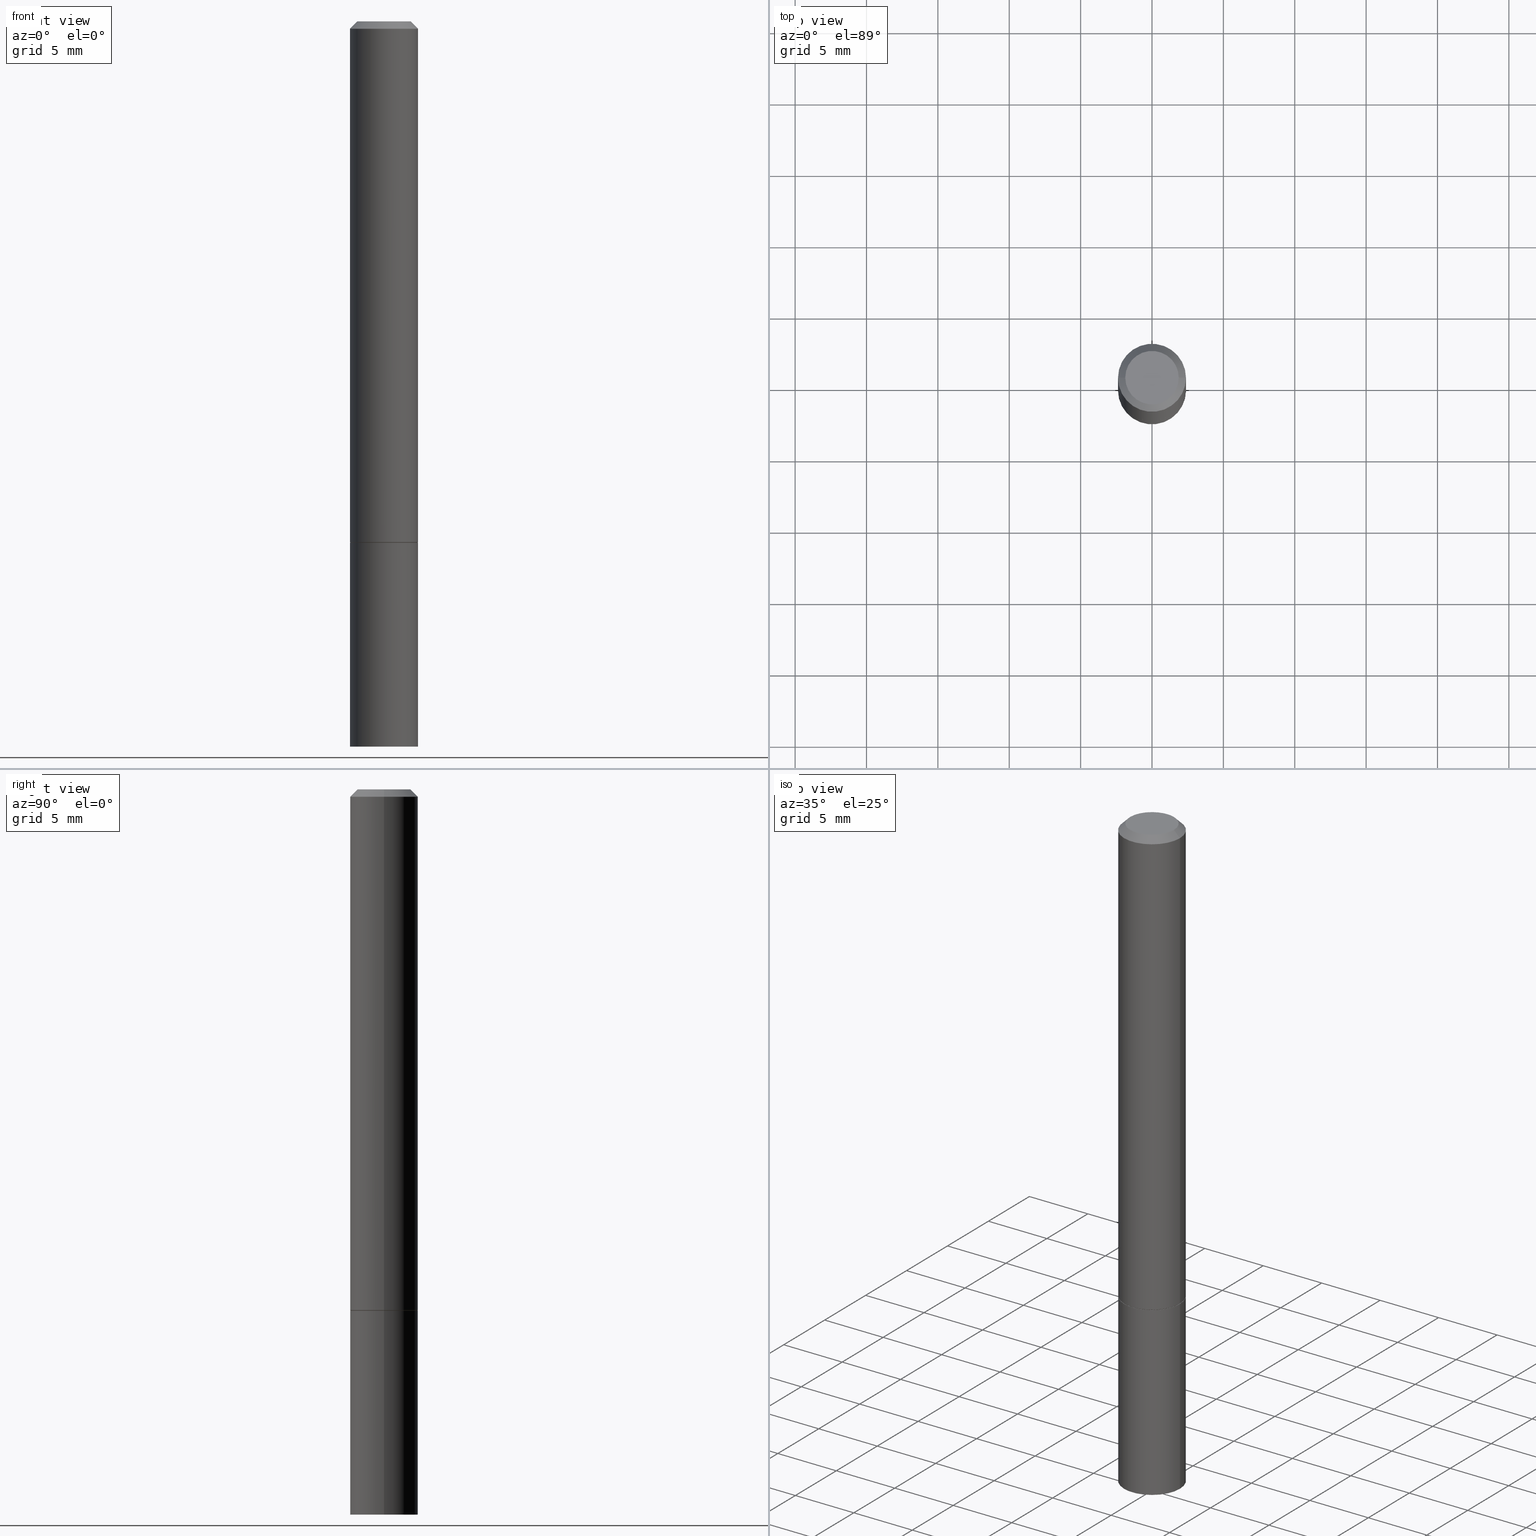
[diagram: canonical four-view strip — front | top / right | iso, engineering-drawing reading convention]
A machine part, canonical four-view strip (front | top / right | iso — engineering-drawing reading convention). The complete STEP part file that produces these views, byte-faithful:
ISO-10303-21;
HEADER;
FILE_DESCRIPTION (( 'STEP AP203' ),
    '1' );
FILE_NAME ('34702.STEP',
    '2024-02-27T16:44:14',
    ( '' ),
    ( '' ),
    'SwSTEP 2.0',
    'SolidWorks 2023',
    '' );
FILE_SCHEMA (( 'CONFIG_CONTROL_DESIGN' ));
ENDSEC;

DATA;
#1 = DIRECTION ( 'NONE',  ( 1.000000000000000000, -6.982962677686265922E-15, 4.876176775795935793E-29 ) ) ;
#2 = PERSON_AND_ORGANIZATION_ROLE ( 'design_owner' ) ;
#3 = LOCAL_TIME ( 11, 44, 14.00000000000000000, #294 ) ;
#4 = DIRECTION ( 'NONE',  ( -2.445468806185136597E-29, 3.491481338843145583E-15, 1.000000000000000000 ) ) ;
#5 = ADVANCED_FACE ( 'NONE', ( #284 ), #116, .T. ) ;
#6 = DIRECTION ( 'NONE',  ( 2.445468806185136597E-29, -3.491481338843145583E-15, -1.000000000000000000 ) ) ;
#7 = DATE_TIME_ROLE ( 'creation_date' ) ;
#8 = DIRECTION ( 'NONE',  ( -2.445468806185136597E-29, 3.491481338843145583E-15, 1.000000000000000000 ) ) ;
#9 = CARTESIAN_POINT ( 'NONE',  ( -0.09375000000000001388, -5.334849736361562435E-15, -2.000000000000000000 ) ) ;
#10 = ORIENTED_EDGE ( 'NONE', *, *, #359, .F. ) ;
#11 = COORDINATED_UNIVERSAL_TIME_OFFSET ( 5, 0, .BEHIND. ) ;
#12 = AXIS2_PLACEMENT_3D ( 'NONE', #174, #4, #127 ) ;
#13 = CLOSED_SHELL ( 'NONE', ( #53, #192, #166, #270, #244, #283, #263, #150 ) ) ;
#14 = APPROVAL_ROLE ( '' ) ;
#15 = ORIENTED_EDGE ( 'NONE', *, *, #112, .F. ) ;
#16 = EDGE_CURVE ( 'NONE', #317, #46, #160, .T. ) ;
#17 = ORIENTED_EDGE ( 'NONE', *, *, #198, .T. ) ;
#18 = DIRECTION ( 'NONE',  ( 0.7071067811865232589, -2.468850131082003836E-15, 0.7071067811865715536 ) ) ;
#19 = EDGE_LOOP ( 'NONE', ( #204, #189, #121, #50 ) ) ;
#20 = CIRCLE ( 'NONE', #233, 0.07374999999999988509 ) ;
#21 = ORIENTED_EDGE ( 'NONE', *, *, #91, .F. ) ;
#22 = DIRECTION ( 'NONE',  ( 1.000000000000000000, -6.982962677686261977E-15, 0.000000000000000000 ) ) ;
#23 = CIRCLE ( 'NONE', #88, 0.09374999999999983347 ) ;
#24 = DIRECTION ( 'NONE',  ( 2.438088387897960049E-29, -3.491481338843145188E-15, -1.000000000000000000 ) ) ;
#25 = FACE_OUTER_BOUND ( 'NONE', #362, .T. ) ;
#26 =( NAMED_UNIT ( * ) PLANE_ANGLE_UNIT ( ) SI_UNIT ( $, .RADIAN. ) );
#27 = DIRECTION ( 'NONE',  ( -0.7071067811865232589, 7.493145998870265808E-15, 0.7071067811865715536 ) ) ;
#28 = CARTESIAN_POINT ( 'NONE',  ( 0.09374999999999991673, -6.546527510330869125E-16, 4.571415727308685602E-30 ) ) ;
#29 = ORIENTED_EDGE ( 'NONE', *, *, #49, .T. ) ;
#30 =( GEOMETRIC_REPRESENTATION_CONTEXT ( 3 ) GLOBAL_UNCERTAINTY_ASSIGNED_CONTEXT ( ( #81 ) ) GLOBAL_UNIT_ASSIGNED_CONTEXT ( ( #191, #26, #274 ) ) REPRESENTATION_CONTEXT ( 'NONE', 'WORKASPACE' ) );
#31 = CARTESIAN_POINT ( 'NONE',  ( 4.890937612370274910E-31, -6.982962677686295307E-17, -0.02000000000000000736 ) ) ;
#32 = DIRECTION ( 'NONE',  ( -1.000000000000000000, 6.982962677686265922E-15, -4.876176775795935793E-29 ) ) ;
#33 = CARTESIAN_POINT ( 'NONE',  ( 4.890937612370273194E-29, -6.982962677686291165E-15, -2.000000000000000000 ) ) ;
#34 = PERSON_AND_ORGANIZATION ( #329, #44 ) ;
#35 = CARTESIAN_POINT ( 'NONE',  ( 0.09374999999999983347, -7.130013140679429031E-16, -0.02000000000000000736 ) ) ;
#36 = VERTEX_POINT ( 'NONE', #231 ) ;
#37 = AXIS2_PLACEMENT_3D ( 'NONE', #131, #60, #346 ) ;
#38 =( LENGTH_UNIT ( ) NAMED_UNIT ( * ) SI_UNIT ( $, .METRE. ) );
#39 = SHAPE_DEFINITION_REPRESENTATION ( #72, #126 ) ;
#40 = MANIFOLD_SOLID_BREP ( 'Body-Move/Copy2[2]', #13 ) ;
#41 = DIRECTION ( 'NONE',  ( 1.000000000000000000, 0.000000000000000000, 0.000000000000000000 ) ) ;
#42 = MANIFOLD_SOLID_BREP ( 'Body-Move/Copy2[1]', #268 ) ;
#43 = ADVANCED_FACE ( 'NONE', ( #223 ), #305, .T. ) ;
#44 = ORGANIZATION ( 'UNSPECIFIED', 'UNSPECIFIED', '' ) ;
#45 = ORIENTED_EDGE ( 'NONE', *, *, #361, .F. ) ;
#46 = VERTEX_POINT ( 'NONE', #251 ) ;
#47 = AXIS2_PLACEMENT_3D ( 'NONE', #176, #154, #261 ) ;
#48 = CC_DESIGN_SECURITY_CLASSIFICATION ( #296, ( #55 ) ) ;
#49 = EDGE_CURVE ( 'NONE', #173, #137, #169, .T. ) ;
#50 = ORIENTED_EDGE ( 'NONE', *, *, #320, .F. ) ;
#51 = DIRECTION ( 'NONE',  ( -2.438088387897960049E-29, 3.491481338843145188E-15, 1.000000000000000000 ) ) ;
#52 = DIRECTION ( 'NONE',  ( -2.445468806185136597E-29, 3.491481338843145583E-15, 1.000000000000000000 ) ) ;
#53 = ADVANCED_FACE ( 'NONE', ( #25 ), #354, .T. ) ;
#54 = APPLICATION_PROTOCOL_DEFINITION ( 'international standard', 'config_control_design', 1994, #98 ) ;
#55 = PRODUCT_DEFINITION_FORMATION_WITH_SPECIFIED_SOURCE ( 'ANY', '', #135, .NOT_KNOWN. ) ;
#56 = EDGE_LOOP ( 'NONE', ( #15, #230, #351, #193 ) ) ;
#57 = VECTOR ( 'NONE', #90, 39.37007874015748143 ) ;
#58 = DIRECTION ( 'NONE',  ( -2.445468806185136597E-29, 3.491481338843145583E-15, 1.000000000000000000 ) ) ;
#59 = LINE ( 'NONE', #170, #325 ) ;
#60 = DIRECTION ( 'NONE',  ( -2.445468806185136597E-29, 3.491481338843145583E-15, 1.000000000000000000 ) ) ;
#61 = CC_DESIGN_PERSON_AND_ORGANIZATION_ASSIGNMENT ( #292, #311, ( #296 ) ) ;
#62 = CARTESIAN_POINT ( 'NONE',  ( 0.000000000000000000, 0.000000000000000000, 0.000000000000000000 ) ) ;
#63 = CONICAL_SURFACE ( 'NONE', #199, 0.09374999999999983347, 0.7853981633974469467 ) ;
#64 = CARTESIAN_POINT ( 'NONE',  ( 5.149934974793613022E-16, 0.07374999999999988509, -2.553624924946313252E-16 ) ) ;
#65 = APPROVAL_DATE_TIME ( #157, #197 ) ;
#66 = DIRECTION ( 'NONE',  ( 1.000000000000000000, -6.982962677686261189E-15, 0.000000000000000000 ) ) ;
#67 = DIRECTION ( 'NONE',  ( 1.000000000000000000, -6.982962677686261977E-15, 0.000000000000000000 ) ) ;
#68 = DIRECTION ( 'NONE',  ( -2.445468806185136597E-29, 3.491481338843145583E-15, 1.000000000000000000 ) ) ;
#69 = AXIS2_PLACEMENT_3D ( 'NONE', #203, #226, #330 ) ;
#70 = ORIENTED_EDGE ( 'NONE', *, *, #220, .F. ) ;
#71 = CALENDAR_DATE ( 2024, 27, 2 ) ;
#72 = PRODUCT_DEFINITION_SHAPE ( 'NONE', 'NONE',  #205 ) ;
#73 = CARTESIAN_POINT ( 'NONE',  ( -0.09374999999999983347, 5.848231242562234171E-16, -0.02000000000000000736 ) ) ;
#74 = CALENDAR_DATE ( 2024, 27, 2 ) ;
#75 = ORIENTED_EDGE ( 'NONE', *, *, #112, .T. ) ;
#76 = ORIENTED_EDGE ( 'NONE', *, *, #324, .F. ) ;
#77 = CIRCLE ( 'NONE', #12, 0.09274999999999999911 ) ;
#78 = DIRECTION ( 'NONE',  ( -2.445468806185136877E-29, 3.491481338843145188E-15, 1.000000000000000000 ) ) ;
#79 = VERTEX_POINT ( 'NONE', #327 ) ;
#80 = FACE_OUTER_BOUND ( 'NONE', #246, .T. ) ;
#81 = UNCERTAINTY_MEASURE_WITH_UNIT (LENGTH_MEASURE( 1.000000000000000082E-05 ), #191, 'distance_accuracy_value', 'NONE');
#82 = AXIS2_PLACEMENT_3D ( 'NONE', #249, #51, #229 ) ;
#83 = CC_DESIGN_DATE_AND_TIME_ASSIGNMENT ( #151, #7, ( #205 ) ) ;
#84 = EDGE_CURVE ( 'NONE', #156, #338, #85, .T. ) ;
#85 = LINE ( 'NONE', #93, #153 ) ;
#86 = FACE_OUTER_BOUND ( 'NONE', #19, .T. ) ;
#87 = ORIENTED_EDGE ( 'NONE', *, *, #198, .F. ) ;
#88 = AXIS2_PLACEMENT_3D ( 'NONE', #31, #149, #122 ) ;
#89 = DIRECTION ( 'NONE',  ( -2.445468806185136877E-29, 3.491481338843145188E-15, 1.000000000000000000 ) ) ;
#90 = DIRECTION ( 'NONE',  ( -2.445468806185136877E-29, 3.491481338843145188E-15, 1.000000000000000000 ) ) ;
#91 = EDGE_CURVE ( 'NONE', #338, #308, #291, .T. ) ;
#92 = CARTESIAN_POINT ( 'NONE',  ( -0.09274999999999999911, -4.354677582821307024E-15, -1.437500000000000000 ) ) ;
#93 = CARTESIAN_POINT ( 'NONE',  ( -0.09375000000000001388, 6.661338147750940229E-16, -4.611501647113973995E-30 ) ) ;
#94 = DIRECTION ( 'NONE',  ( 1.000000000000000000, -6.982962677686261189E-15, 0.000000000000000000 ) ) ;
#95 = PERSON_AND_ORGANIZATION ( #329, #44 ) ;
#96 = CC_DESIGN_APPROVAL ( #336, ( #296 ) ) ;
#97 = AXIS2_PLACEMENT_3D ( 'NONE', #167, #58, #360 ) ;
#98 = APPLICATION_CONTEXT ( 'configuration controlled 3d designs of mechanical parts and assemblies' ) ;
#99 = CALENDAR_DATE ( 2024, 27, 2 ) ;
#100 = DIMENSIONAL_EXPONENTS ( 1.000000000000000000, 0.000000000000000000, 0.000000000000000000, 0.000000000000000000, 0.000000000000000000, 0.000000000000000000, 0.000000000000000000 ) ;
#101 = FACE_OUTER_BOUND ( 'NONE', #364, .T. ) ;
#102 = PERSON_AND_ORGANIZATION ( #329, #44 ) ;
#103 = CIRCLE ( 'NONE', #356, 0.09375000000000001388 ) ;
#104 = LOCAL_TIME ( 11, 44, 14.00000000000000000, #341 ) ;
#105 = FACE_OUTER_BOUND ( 'NONE', #316, .T. ) ;
#106 = MECHANICAL_CONTEXT ( 'NONE', #98, 'mechanical' ) ;
#107 = EDGE_CURVE ( 'NONE', #79, #308, #59, .T. ) ;
#108 = ORIENTED_EDGE ( 'NONE', *, *, #218, .F. ) ;
#109 = DIRECTION ( 'NONE',  ( -2.445468806185136597E-29, 3.491481338843145583E-15, 1.000000000000000000 ) ) ;
#110 = DIRECTION ( 'NONE',  ( -0.7071067811865465735, 2.468850131082246805E-15, -0.7071067811865484609 ) ) ;
#111 = EDGE_LOOP ( 'NONE', ( #280, #302, #211, #21 ) ) ;
#112 = EDGE_CURVE ( 'NONE', #145, #187, #363, .T. ) ;
#113 = DIRECTION ( 'NONE',  ( 1.000000000000000000, -6.982962677686266711E-15, 4.876176775795935793E-29 ) ) ;
#114 = AXIS2_PLACEMENT_3D ( 'NONE', #148, #52, #333 ) ;
#115 = DIRECTION ( 'NONE',  ( 1.000000000000000000, -6.982962677686261189E-15, 0.000000000000000000 ) ) ;
#116 = CYLINDRICAL_SURFACE ( 'NONE', #114, 0.09375000000000001388 ) ;
#117 = DIRECTION ( 'NONE',  ( -2.445468806185136597E-29, 3.491481338843145583E-15, 1.000000000000000000 ) ) ;
#118 = VECTOR ( 'NONE', #78, 39.37007874015748143 ) ;
#119 = CARTESIAN_POINT ( 'NONE',  ( -0.09274999999999999911, -4.359976037169529426E-15, -1.437500000000000000 ) ) ;
#120 = LOCAL_TIME ( 11, 44, 14.00000000000000000, #347 ) ;
#121 = ORIENTED_EDGE ( 'NONE', *, *, #218, .T. ) ;
#122 = DIRECTION ( 'NONE',  ( 1.000000000000000000, -6.982962677686267499E-15, 0.000000000000000000 ) ) ;
#123 = PLANE ( 'NONE',  #306 ) ;
#124 = CONICAL_SURFACE ( 'NONE', #179, 0.09374999999999983347, 0.7853981633974469467 ) ;
#125 = DIRECTION ( 'NONE',  ( 0.000000000000000000, 0.000000000000000000, 1.000000000000000000 ) ) ;
#126 = ADVANCED_BREP_SHAPE_REPRESENTATION ( '34702', ( #42, #40, #240 ), #30 ) ;
#127 = DIRECTION ( 'NONE',  ( 1.000000000000000000, -6.982962677686261977E-15, 0.000000000000000000 ) ) ;
#128 = DIRECTION ( 'NONE',  ( -1.000000000000000000, 6.982962677686267499E-15, 0.000000000000000000 ) ) ;
#129 = APPROVAL_STATUS ( 'not_yet_approved' ) ;
#130 = APPLICATION_CONTEXT ( 'configuration controlled 3d designs of mechanical parts and assemblies' ) ;
#131 = CARTESIAN_POINT ( 'NONE',  ( 3.512915940084948255E-29, -5.015512943248178546E-15, -1.436499999999999888 ) ) ;
#132 = APPROVAL_ROLE ( '' ) ;
#133 = PERSON_AND_ORGANIZATION_ROLE ( 'creator' ) ;
#134 = VECTOR ( 'NONE', #110, 39.37007874015748143 ) ;
#135 = PRODUCT ( '34702', '34702', '', ( #106 ) ) ;
#136 = APPROVAL_PERSON_ORGANIZATION ( #34, #336, #132 ) ;
#137 = VERTEX_POINT ( 'NONE', #247 ) ;
#138 = VECTOR ( 'NONE', #340, 39.37007874015748143 ) ;
#139 = ORIENTED_EDGE ( 'NONE', *, *, #107, .F. ) ;
#140 = DIRECTION ( 'NONE',  ( -2.445468806185136597E-29, 3.491481338843145583E-15, 1.000000000000000000 ) ) ;
#141 = AXIS2_PLACEMENT_3D ( 'NONE', #162, #300, #113 ) ;
#142 = DIRECTION ( 'NONE',  ( -1.000000000000000000, 6.982962677686265922E-15, -4.876176775795935793E-29 ) ) ;
#143 = DIRECTION ( 'NONE',  ( -2.445468806185136597E-29, 3.491481338843145583E-15, 1.000000000000000000 ) ) ;
#144 = EDGE_CURVE ( 'NONE', #156, #79, #103, .T. ) ;
#145 = VERTEX_POINT ( 'NONE', #343 ) ;
#146 = CC_DESIGN_PERSON_AND_ORGANIZATION_ASSIGNMENT ( #215, #133, ( #55 ) ) ;
#147 = CARTESIAN_POINT ( 'NONE',  ( 3.515361408891133858E-29, -5.019004424587021553E-15, -1.437500000000000000 ) ) ;
#148 = CARTESIAN_POINT ( 'NONE',  ( 0.000000000000000000, 0.000000000000000000, 0.000000000000000000 ) ) ;
#149 = DIRECTION ( 'NONE',  ( -2.445468806185136597E-29, 3.491481338843145583E-15, 1.000000000000000000 ) ) ;
#150 = ADVANCED_FACE ( 'NONE', ( #155 ), #123, .F. ) ;
#151 = DATE_AND_TIME ( #74, #3 ) ;
#152 = CARTESIAN_POINT ( 'NONE',  ( -1.043851414335219820E-46, 1.490343170380447200E-32, 4.268512490100411279E-18 ) ) ;
#153 = VECTOR ( 'NONE', #194, 39.37007874015748143 ) ;
#154 = DIRECTION ( 'NONE',  ( -2.445468806185136597E-29, 3.491481338843145583E-15, 1.000000000000000000 ) ) ;
#155 = FACE_OUTER_BOUND ( 'NONE', #196, .T. ) ;
#156 = VERTEX_POINT ( 'NONE', #9 ) ;
#157 = DATE_AND_TIME ( #216, #248 ) ;
#158 = ADVANCED_FACE ( 'NONE', ( #105 ), #258, .F. ) ;
#159 = CIRCLE ( 'NONE', #37, 0.09375000000000001388 ) ;
#160 = CIRCLE ( 'NONE', #97, 0.09274999999999999911 ) ;
#161 = VERTEX_POINT ( 'NONE', #235 ) ;
#162 = CARTESIAN_POINT ( 'NONE',  ( 0.000000000000000000, 0.000000000000000000, 0.000000000000000000 ) ) ;
#163 = CC_DESIGN_APPROVAL ( #323, ( #55 ) ) ;
#164 = CARTESIAN_POINT ( 'NONE',  ( 4.890937612370274910E-31, -6.982962677686295307E-17, -0.02000000000000000736 ) ) ;
#165 = EDGE_LOOP ( 'NONE', ( #269, #304, #314, #272 ) ) ;
#166 = ADVANCED_FACE ( 'NONE', ( #287 ), #124, .T. ) ;
#167 = CARTESIAN_POINT ( 'NONE',  ( 3.515361408891133858E-29, -5.019004424587021553E-15, -1.437500000000000000 ) ) ;
#168 = CC_DESIGN_APPROVAL ( #197, ( #205 ) ) ;
#169 = LINE ( 'NONE', #28, #57 ) ;
#170 = CARTESIAN_POINT ( 'NONE',  ( 0.09375000000000001388, -6.546527510330875041E-16, 4.571415727308690506E-30 ) ) ;
#171 = CIRCLE ( 'NONE', #266, 0.09375000000000001388 ) ;
#172 = DIRECTION ( 'NONE',  ( 2.438088387897960049E-29, -3.491481338843145188E-15, -1.000000000000000000 ) ) ;
#173 = VERTEX_POINT ( 'NONE', #366 ) ;
#174 = CARTESIAN_POINT ( 'NONE',  ( 3.515361408891133858E-29, -5.019004424587021553E-15, -1.437500000000000000 ) ) ;
#175 = PERSON_AND_ORGANIZATION ( #329, #44 ) ;
#176 = CARTESIAN_POINT ( 'NONE',  ( 3.512915940084948255E-29, -5.015512943248178546E-15, -1.436499999999999888 ) ) ;
#177 = AXIS2_PLACEMENT_3D ( 'NONE', #62, #68, #214 ) ;
#178 = LINE ( 'NONE', #353, #118 ) ;
#179 = AXIS2_PLACEMENT_3D ( 'NONE', #256, #6, #128 ) ;
#180 = APPLICATION_PROTOCOL_DEFINITION ( 'international standard', 'config_control_design', 1994, #130 ) ;
#181 = ORIENTED_EDGE ( 'NONE', *, *, #307, .T. ) ;
#182 = CC_DESIGN_PERSON_AND_ORGANIZATION_ASSIGNMENT ( #102, #184, ( #55 ) ) ;
#183 = CARTESIAN_POINT ( 'NONE',  ( 6.546527510331227070E-16, 0.09374999999999499012, -1.437500000000000222 ) ) ;
#184 = PERSON_AND_ORGANIZATION_ROLE ( 'design_supplier' ) ;
#185 = EDGE_LOOP ( 'NONE', ( #334, #250 ) ) ;
#186 = ORIENTED_EDGE ( 'NONE', *, *, #359, .T. ) ;
#187 = VERTEX_POINT ( 'NONE', #237 ) ;
#188 = LINE ( 'NONE', #73, #134 ) ;
#189 = ORIENTED_EDGE ( 'NONE', *, *, #16, .T. ) ;
#190 = CYLINDRICAL_SURFACE ( 'NONE', #141, 0.09374999999999991673 ) ;
#191 =( CONVERSION_BASED_UNIT ( 'INCH', #219 ) LENGTH_UNIT ( ) NAMED_UNIT ( #100 ) );
#192 = ADVANCED_FACE ( 'NONE', ( #101 ), #210, .T. ) ;
#193 = ORIENTED_EDGE ( 'NONE', *, *, #206, .F. ) ;
#194 = DIRECTION ( 'NONE',  ( -2.445468806185136877E-29, 3.491481338843145188E-15, 1.000000000000000000 ) ) ;
#195 = CARTESIAN_POINT ( 'NONE',  ( 3.515361408891133858E-29, -5.019004424587021553E-15, -1.437500000000000000 ) ) ;
#196 = EDGE_LOOP ( 'NONE', ( #278, #75 ) ) ;
#197 = APPROVAL ( #129, 'UNSPECIFIED' ) ;
#198 = EDGE_CURVE ( 'NONE', #161, #36, #178, .T. ) ;
#199 = AXIS2_PLACEMENT_3D ( 'NONE', #164, #358, #328 ) ;
#200 = LOCAL_TIME ( 11, 44, 14.00000000000000000, #238 ) ;
#201 = AXIS2_PLACEMENT_3D ( 'NONE', #147, #117, #22 ) ;
#202 = CARTESIAN_POINT ( 'NONE',  ( 4.890937612370273194E-29, -6.982962677686291165E-15, -2.000000000000000000 ) ) ;
#203 = CARTESIAN_POINT ( 'NONE',  ( 3.515361408891133858E-29, -5.019004424587021553E-15, -1.437500000000000000 ) ) ;
#204 = ORIENTED_EDGE ( 'NONE', *, *, #254, .F. ) ;
#205 = PRODUCT_DEFINITION ( 'UNKNOWN', '', #55, #303 ) ;
#206 = EDGE_CURVE ( 'NONE', #187, #36, #188, .T. ) ;
#207 = SECURITY_CLASSIFICATION_LEVEL ( 'unclassified' ) ;
#208 = CARTESIAN_POINT ( 'NONE',  ( 3.515361408891133858E-29, -5.019004424587021553E-15, -1.437500000000000000 ) ) ;
#209 = APPROVAL_DATE_TIME ( #319, #336 ) ;
#210 = CYLINDRICAL_SURFACE ( 'NONE', #177, 0.09374999999999991673 ) ;
#211 = ORIENTED_EDGE ( 'NONE', *, *, #107, .T. ) ;
#212 = CARTESIAN_POINT ( 'NONE',  ( 0.000000000000000000, 0.000000000000000000, 0.000000000000000000 ) ) ;
#213 = AXIS2_PLACEMENT_3D ( 'NONE', #253, #140, #281 ) ;
#214 = DIRECTION ( 'NONE',  ( 1.000000000000000000, -6.982962677686266711E-15, 4.876176775795935793E-29 ) ) ;
#215 = PERSON_AND_ORGANIZATION ( #329, #44 ) ;
#216 = CALENDAR_DATE ( 2024, 27, 2 ) ;
#217 = DIRECTION ( 'NONE',  ( 1.000000000000000000, -6.982962677686267499E-15, 0.000000000000000000 ) ) ;
#218 = EDGE_CURVE ( 'NONE', #46, #173, #298, .T. ) ;
#219 = LENGTH_MEASURE_WITH_UNIT ( LENGTH_MEASURE( 0.02539999999999999897 ), #38 );
#220 = EDGE_CURVE ( 'NONE', #36, #137, #228, .T. ) ;
#221 = ORIENTED_EDGE ( 'NONE', *, *, #16, .F. ) ;
#222 = AXIS2_PLACEMENT_3D ( 'NONE', #183, #172, #32 ) ;
#223 = FACE_OUTER_BOUND ( 'NONE', #185, .T. ) ;
#224 = CC_DESIGN_PERSON_AND_ORGANIZATION_ASSIGNMENT ( #175, #321, ( #205 ) ) ;
#225 = ORIENTED_EDGE ( 'NONE', *, *, #49, .F. ) ;
#226 = DIRECTION ( 'NONE',  ( -2.445468806185136597E-29, 3.491481338843145583E-15, 1.000000000000000000 ) ) ;
#227 = APPROVAL_ROLE ( '' ) ;
#228 = CIRCLE ( 'NONE', #331, 0.09374999999999983347 ) ;
#229 = DIRECTION ( 'NONE',  ( 1.000000000000000000, -6.982962677686265922E-15, 4.876176775795935793E-29 ) ) ;
#230 = ORIENTED_EDGE ( 'NONE', *, *, #348, .T. ) ;
#231 = CARTESIAN_POINT ( 'NONE',  ( -0.09374999999999983347, 5.848231242562234171E-16, -0.02000000000000000736 ) ) ;
#232 = CARTESIAN_POINT ( 'NONE',  ( -0.09375000000000001388, -5.334849736361562435E-15, -1.437500000000000000 ) ) ;
#233 = AXIS2_PLACEMENT_3D ( 'NONE', #152, #255, #365 ) ;
#234 = LINE ( 'NONE', #35, #138 ) ;
#235 = CARTESIAN_POINT ( 'NONE',  ( -0.09375000000000001388, -1.876537470237424631E-15, -1.436499999999999888 ) ) ;
#236 = DATE_TIME_ROLE ( 'classification_date' ) ;
#237 = CARTESIAN_POINT ( 'NONE',  ( -0.07374999999999988509, 5.499083108677923596E-16, 4.268512490096688071E-18 ) ) ;
#238 = COORDINATED_UNIVERSAL_TIME_OFFSET ( 5, 0, .BEHIND. ) ;
#239 = CARTESIAN_POINT ( 'NONE',  ( 0.09375000000000001388, -5.673657175620109057E-15, -1.437500000000000000 ) ) ;
#240 = AXIS2_PLACEMENT_3D ( 'NONE', #350, #125, #41 ) ;
#241 = ORIENTED_EDGE ( 'NONE', *, *, #361, .T. ) ;
#242 = ORIENTED_EDGE ( 'NONE', *, *, #345, .T. ) ;
#243 = CARTESIAN_POINT ( 'NONE',  ( 4.890937612370274910E-31, -6.982962677686295307E-17, -0.02000000000000000736 ) ) ;
#244 = ADVANCED_FACE ( 'NONE', ( #80 ), #190, .T. ) ;
#245 = APPROVAL_PERSON_ORGANIZATION ( #293, #323, #14 ) ;
#246 = EDGE_LOOP ( 'NONE', ( #87, #252, #29, #70 ) ) ;
#247 = CARTESIAN_POINT ( 'NONE',  ( 0.09374999999999983347, -7.130013140679429031E-16, -0.02000000000000000736 ) ) ;
#248 = LOCAL_TIME ( 11, 44, 14.00000000000000000, #11 ) ;
#249 = CARTESIAN_POINT ( 'NONE',  ( 3.515361408891133858E-29, -5.019004424587021553E-15, -1.437500000000000000 ) ) ;
#250 = ORIENTED_EDGE ( 'NONE', *, *, #144, .F. ) ;
#251 = CARTESIAN_POINT ( 'NONE',  ( 0.09274999999999999911, -5.666674212942423043E-15, -1.437500000000000000 ) ) ;
#252 = ORIENTED_EDGE ( 'NONE', *, *, #320, .T. ) ;
#253 = CARTESIAN_POINT ( 'NONE',  ( -1.043851414335219820E-46, 1.490343170380447200E-32, 4.268512490100411279E-18 ) ) ;
#254 = EDGE_CURVE ( 'NONE', #317, #161, #282, .T. ) ;
#255 = DIRECTION ( 'NONE',  ( -2.445468806185136597E-29, 3.491481338843145583E-15, 1.000000000000000000 ) ) ;
#256 = CARTESIAN_POINT ( 'NONE',  ( 4.890937612370274910E-31, -6.982962677686295307E-17, -0.02000000000000000736 ) ) ;
#257 = CYLINDRICAL_SURFACE ( 'NONE', #310, 0.09375000000000001388 ) ;
#258 = PLANE ( 'NONE',  #222 ) ;
#259 = APPROVAL_STATUS ( 'not_yet_approved' ) ;
#260 = CIRCLE ( 'NONE', #295, 0.09375000000000001388 ) ;
#261 = DIRECTION ( 'NONE',  ( 1.000000000000000000, -6.982962677686261189E-15, 0.000000000000000000 ) ) ;
#262 = CC_DESIGN_PERSON_AND_ORGANIZATION_ASSIGNMENT ( #95, #2, ( #135 ) ) ;
#263 = ADVANCED_FACE ( 'NONE', ( #275 ), #355, .F. ) ;
#264 = PERSON_AND_ORGANIZATION ( #329, #44 ) ;
#265 = CALENDAR_DATE ( 2024, 27, 2 ) ;
#266 = AXIS2_PLACEMENT_3D ( 'NONE', #33, #335, #94 ) ;
#267 = APPROVAL_STATUS ( 'not_yet_approved' ) ;
#268 = CLOSED_SHELL ( 'NONE', ( #5, #43, #158, #313 ) ) ;
#269 = ORIENTED_EDGE ( 'NONE', *, *, #348, .F. ) ;
#270 = ADVANCED_FACE ( 'NONE', ( #279 ), #63, .T. ) ;
#271 = CARTESIAN_POINT ( 'NONE',  ( 0.09274999999999999911, -5.666674212942423043E-15, -1.437500000000000000 ) ) ;
#272 = ORIENTED_EDGE ( 'NONE', *, *, #220, .T. ) ;
#273 = EDGE_LOOP ( 'NONE', ( #242, #309, #10, #139 ) ) ;
#274 =( NAMED_UNIT ( * ) SI_UNIT ( $, .STERADIAN. ) SOLID_ANGLE_UNIT ( ) );
#275 = FACE_OUTER_BOUND ( 'NONE', #299, .T. ) ;
#276 = CARTESIAN_POINT ( 'NONE',  ( 6.546527510331364135E-16, 0.09374999999999301947, -2.000000000000000444 ) ) ;
#277 = CC_DESIGN_DATE_AND_TIME_ASSIGNMENT ( #288, #236, ( #296 ) ) ;
#278 = ORIENTED_EDGE ( 'NONE', *, *, #337, .T. ) ;
#279 = FACE_OUTER_BOUND ( 'NONE', #165, .T. ) ;
#280 = ORIENTED_EDGE ( 'NONE', *, *, #84, .F. ) ;
#281 = DIRECTION ( 'NONE',  ( 1.000000000000000000, -6.982962677686265922E-15, 4.875869617646592813E-29 ) ) ;
#282 = LINE ( 'NONE', #119, #352 ) ;
#283 = ADVANCED_FACE ( 'NONE', ( #86 ), #339, .T. ) ;
#284 = FACE_OUTER_BOUND ( 'NONE', #273, .T. ) ;
#285 = AXIS2_PLACEMENT_3D ( 'NONE', #195, #143, #67 ) ;
#286 = FACE_OUTER_BOUND ( 'NONE', #111, .T. ) ;
#287 = FACE_OUTER_BOUND ( 'NONE', #56, .T. ) ;
#288 = DATE_AND_TIME ( #265, #200 ) ;
#289 = DIRECTION ( 'NONE',  ( 2.438088387897960049E-29, -3.491481338843145188E-15, -1.000000000000000000 ) ) ;
#290 = APPROVAL_PERSON_ORGANIZATION ( #264, #197, #227 ) ;
#291 = CIRCLE ( 'NONE', #69, 0.09375000000000001388 ) ;
#292 = PERSON_AND_ORGANIZATION ( #329, #44 ) ;
#293 = PERSON_AND_ORGANIZATION ( #329, #44 ) ;
#294 = COORDINATED_UNIVERSAL_TIME_OFFSET ( 5, 0, .BEHIND. ) ;
#295 = AXIS2_PLACEMENT_3D ( 'NONE', #208, #315, #66 ) ;
#296 = SECURITY_CLASSIFICATION ( '', '', #207 ) ;
#297 = AXIS2_PLACEMENT_3D ( 'NONE', #276, #24, #142 ) ;
#298 = LINE ( 'NONE', #271, #301 ) ;
#299 = EDGE_LOOP ( 'NONE', ( #45, #221 ) ) ;
#300 = DIRECTION ( 'NONE',  ( -2.445468806185136597E-29, 3.491481338843145583E-15, 1.000000000000000000 ) ) ;
#301 = VECTOR ( 'NONE', #18, 39.37007874015748854 ) ;
#302 = ORIENTED_EDGE ( 'NONE', *, *, #144, .T. ) ;
#303 = DESIGN_CONTEXT ( 'detailed design', #130, 'design' ) ;
#304 = ORIENTED_EDGE ( 'NONE', *, *, #337, .F. ) ;
#305 = PLANE ( 'NONE',  #297 ) ;
#306 = AXIS2_PLACEMENT_3D ( 'NONE', #64, #289, #349 ) ;
#307 = EDGE_CURVE ( 'NONE', #173, #161, #318, .T. ) ;
#308 = VERTEX_POINT ( 'NONE', #239 ) ;
#309 = ORIENTED_EDGE ( 'NONE', *, *, #84, .T. ) ;
#310 = AXIS2_PLACEMENT_3D ( 'NONE', #212, #8, #1 ) ;
#311 = PERSON_AND_ORGANIZATION_ROLE ( 'classification_officer' ) ;
#312 = PRODUCT_RELATED_PRODUCT_CATEGORY ( 'detail', '', ( #135 ) ) ;
#313 = ADVANCED_FACE ( 'NONE', ( #286 ), #257, .T. ) ;
#314 = ORIENTED_EDGE ( 'NONE', *, *, #206, .T. ) ;
#315 = DIRECTION ( 'NONE',  ( -2.445468806185136597E-29, 3.491481338843145583E-15, 1.000000000000000000 ) ) ;
#316 = EDGE_LOOP ( 'NONE', ( #186, #322 ) ) ;
#317 = VERTEX_POINT ( 'NONE', #92 ) ;
#318 = CIRCLE ( 'NONE', #47, 0.09375000000000001388 ) ;
#319 = DATE_AND_TIME ( #99, #104 ) ;
#320 = EDGE_CURVE ( 'NONE', #161, #173, #159, .T. ) ;
#321 = PERSON_AND_ORGANIZATION_ROLE ( 'creator' ) ;
#322 = ORIENTED_EDGE ( 'NONE', *, *, #91, .T. ) ;
#323 = APPROVAL ( #267, 'UNSPECIFIED' ) ;
#324 = EDGE_CURVE ( 'NONE', #137, #36, #23, .T. ) ;
#325 = VECTOR ( 'NONE', #89, 39.37007874015748143 ) ;
#326 = ORIENTED_EDGE ( 'NONE', *, *, #307, .F. ) ;
#327 = CARTESIAN_POINT ( 'NONE',  ( 0.09375000000000001388, -7.637615428719378669E-15, -2.000000000000000000 ) ) ;
#328 = DIRECTION ( 'NONE',  ( -1.000000000000000000, 6.982962677686267499E-15, 0.000000000000000000 ) ) ;
#329 = PERSON ( 'UNSPECIFIED', 'UNSPECIFIED', 'UNSPECIFIED', ('UNSPECIFIED'), ('UNSPECIFIED'), ('UNSPECIFIED') ) ;
#330 = DIRECTION ( 'NONE',  ( 1.000000000000000000, -6.982962677686261189E-15, 0.000000000000000000 ) ) ;
#331 = AXIS2_PLACEMENT_3D ( 'NONE', #243, #109, #217 ) ;
#332 = APPROVAL_DATE_TIME ( #344, #323 ) ;
#333 = DIRECTION ( 'NONE',  ( 1.000000000000000000, -6.982962677686265922E-15, 4.876176775795935793E-29 ) ) ;
#334 = ORIENTED_EDGE ( 'NONE', *, *, #345, .F. ) ;
#335 = DIRECTION ( 'NONE',  ( -2.445468806185136597E-29, 3.491481338843145583E-15, 1.000000000000000000 ) ) ;
#336 = APPROVAL ( #259, 'UNSPECIFIED' ) ;
#337 = EDGE_CURVE ( 'NONE', #187, #145, #20, .T. ) ;
#338 = VERTEX_POINT ( 'NONE', #232 ) ;
#339 = CONICAL_SURFACE ( 'NONE', #285, 0.09274999999999999911, 0.7853981633974141952 ) ;
#340 = DIRECTION ( 'NONE',  ( 0.7071067811865465735, -7.319954787623252890E-15, -0.7071067811865484609 ) ) ;
#341 = COORDINATED_UNIVERSAL_TIME_OFFSET ( 5, 0, .BEHIND. ) ;
#342 = ORIENTED_EDGE ( 'NONE', *, *, #254, .T. ) ;
#343 = CARTESIAN_POINT ( 'NONE',  ( 0.07374999999999988509, -6.094815207017963170E-16, 4.268512490104342487E-18 ) ) ;
#344 = DATE_AND_TIME ( #71, #120 ) ;
#345 = EDGE_CURVE ( 'NONE', #79, #156, #171, .T. ) ;
#346 = DIRECTION ( 'NONE',  ( 1.000000000000000000, -6.982962677686261189E-15, 0.000000000000000000 ) ) ;
#347 = COORDINATED_UNIVERSAL_TIME_OFFSET ( 5, 0, .BEHIND. ) ;
#348 = EDGE_CURVE ( 'NONE', #145, #137, #234, .T. ) ;
#349 = DIRECTION ( 'NONE',  ( -1.000000000000000000, 6.982962677686265922E-15, -4.876176775795935793E-29 ) ) ;
#350 = CARTESIAN_POINT ( 'NONE',  ( 0.000000000000000000, 0.000000000000000000, 0.000000000000000000 ) ) ;
#351 = ORIENTED_EDGE ( 'NONE', *, *, #324, .T. ) ;
#352 = VECTOR ( 'NONE', #27, 39.37007874015748854 ) ;
#353 = CARTESIAN_POINT ( 'NONE',  ( -0.09374999999999991673, 6.661338147750933326E-16, -4.611501647113969791E-30 ) ) ;
#354 = CONICAL_SURFACE ( 'NONE', #201, 0.09274999999999999911, 0.7853981633974141952 ) ;
#355 = PLANE ( 'NONE',  #82 ) ;
#356 = AXIS2_PLACEMENT_3D ( 'NONE', #202, #357, #115 ) ;
#357 = DIRECTION ( 'NONE',  ( -2.445468806185136597E-29, 3.491481338843145583E-15, 1.000000000000000000 ) ) ;
#358 = DIRECTION ( 'NONE',  ( 2.445468806185136597E-29, -3.491481338843145583E-15, -1.000000000000000000 ) ) ;
#359 = EDGE_CURVE ( 'NONE', #308, #338, #260, .T. ) ;
#360 = DIRECTION ( 'NONE',  ( 1.000000000000000000, -6.982962677686261977E-15, 0.000000000000000000 ) ) ;
#361 = EDGE_CURVE ( 'NONE', #46, #317, #77, .T. ) ;
#362 = EDGE_LOOP ( 'NONE', ( #241, #342, #326, #108 ) ) ;
#363 = CIRCLE ( 'NONE', #213, 0.07374999999999988509 ) ;
#364 = EDGE_LOOP ( 'NONE', ( #181, #17, #76, #225 ) ) ;
#365 = DIRECTION ( 'NONE',  ( 1.000000000000000000, -6.982962677686265922E-15, 4.875869617646592813E-29 ) ) ;
#366 = CARTESIAN_POINT ( 'NONE',  ( 0.09375000000000001388, -5.670165694281265261E-15, -1.436499999999999888 ) ) ;
ENDSEC;
END-ISO-10303-21;
